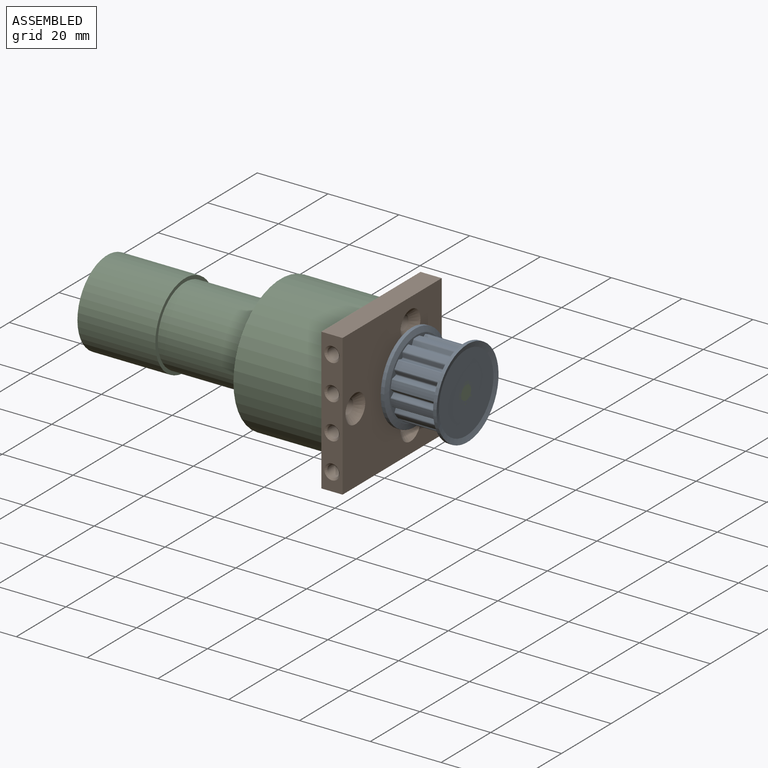
[diagram: assembled view]
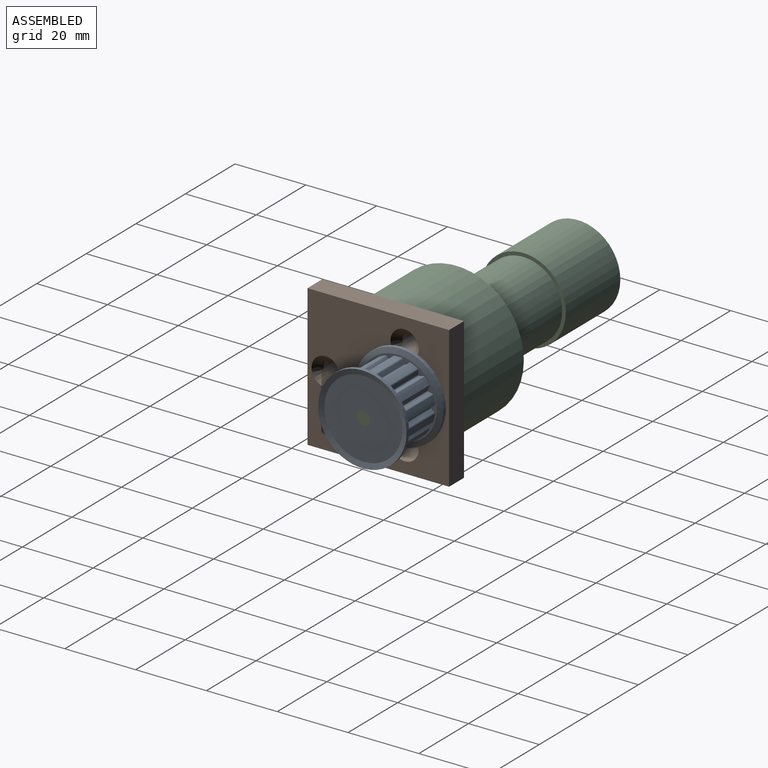
[diagram: assembled view, second angle]
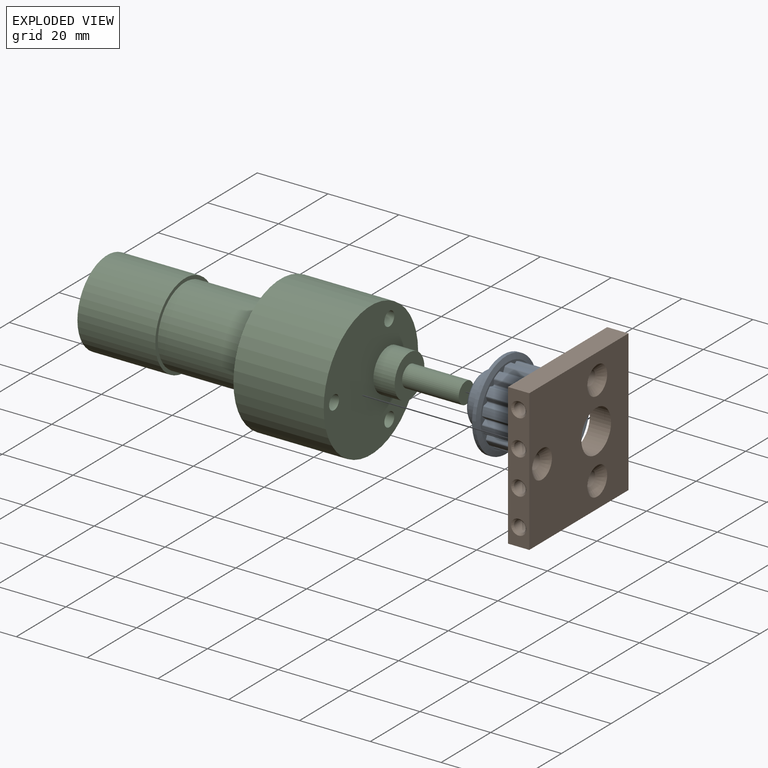
[diagram: exploded view]
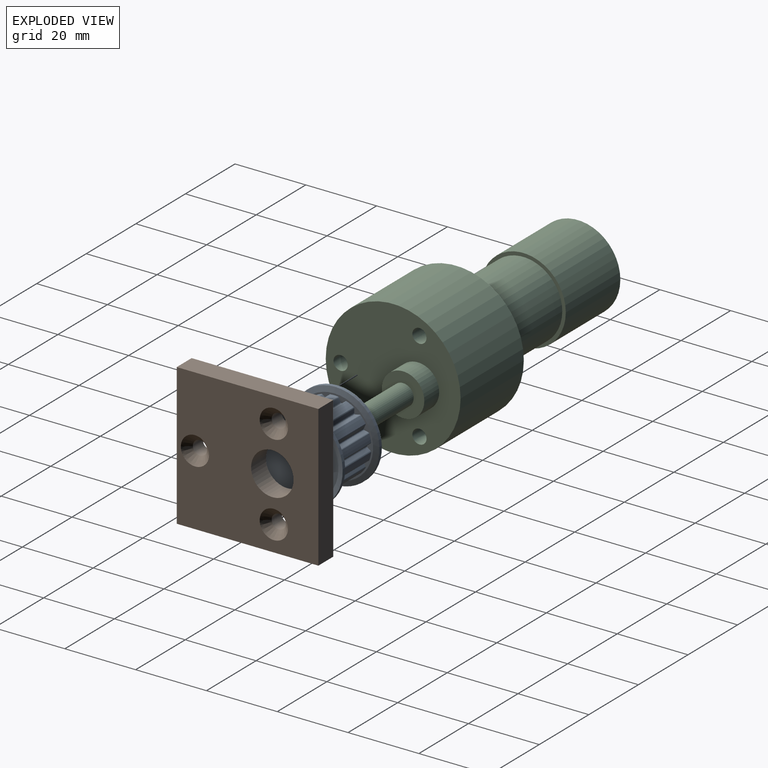
[diagram: exploded view, second angle]
ASSEMBLY  parts=3 mates=2
PART A: 121 faces, bbox 21.4x25x25 mm
  f0: cone r=11.75mm half-angle=75deg, axis (-1,0,0), area 114.6mm2, adj f1,f27
  f1: cylinder r=12.5mm len=25mm, axis (1,0,0), area 78.5mm2, adj f0,f2
  f2: cone r=11.75mm half-angle=75deg, axis (-1,0,0), area 114.6mm2, adj f1,f119
  f3: cone r=11.75mm half-angle=75deg, axis (1,0,0), area 114.6mm2, adj f4,f36
  f4: cylinder r=12.5mm len=25mm, axis (-1,0,0), area 78.5mm2, adj f3,f5
  f5: cone r=11.75mm half-angle=75deg, axis (1,0,0), area 114.6mm2, adj f4,f120
  f6: cylinder r=7mm len=14mm, axis (1,0,0), area 157.5mm2, adj f7,f15,f17
  f7: cone r=6.75mm half-angle=45deg, axis (-1,0,0), area 30mm2, adj f6,f18
  f8: cone r=0.5mm half-angle=30deg, axis (-1,0,0), area 6.3mm2, adj f9
  f9: cylinder r=1mm len=2mm, axis (1,0,0), area 9.7mm2, adj f8,f10
  f10: cone r=1.5mm half-angle=30deg, axis (-1,0,0), area 18.8mm2, adj f9,f119
  f11: cone r=0.5mm half-angle=30deg, axis (1,0,0), area 4.2mm2, adj f12,f16
  f12: cylinder r=1mm len=2mm, axis (-1,0,0), area 9.7mm2, adj f11,f13
  f13: cone r=1.5mm half-angle=30deg, axis (1,0,0), area 18.8mm2, adj f12,f18
  f14: cylinder r=9mm len=18mm, axis (1,0,0), area 0.1mm2, adj f15,f120
  f15: torus R=9mm, axis (1,0,0), area 148.9mm2, adj f6,f14,f17
  f16: plane 1.15x1.15mm, normal (1,0,0), area 1mm2, adj f11
  f17: plane 13.97x7.64mm, normal (1,0,0), area 0.2mm2, adj f6,f15
  f18: plane 13x13mm, normal (1,0,0), area 120.2mm2, adj f7,f13
  f19: plane 13x0.79mm, normal (0,0.77,0.63), area 13.2mm2, adj f20,f25,f27,f36
  f20: cylinder r=0.6mm len=13mm, axis (1,0,0), area 5.3mm2, adj f19,f21,f27,f36
  f21: cylinder r=10.53mm len=13mm, axis (1,0,0), area 29.5mm2, adj f20,f22,f27,f36
  f22: cylinder r=0.6mm len=13mm, axis (1,0,0), area 5.3mm2, adj f21,f23,f27,f36
  f23: plane 13x1.02mm, normal (0,-0.01,-1), area 13.2mm2, adj f22,f24,f27,f36
  f24: cylinder r=0.4mm len=13mm, axis (1,0,0), area 4.1mm2, adj f23,f27,f33,f36
  f25: cylinder r=0.4mm len=13mm, axis (1,0,0), area 4.1mm2, adj f19,f26,f27,f36
  f26: cylinder r=0.4mm len=13mm, axis (1,0,0), area 4.1mm2, adj f25,f27,f36,f118
  f27: plane 22x22mm, normal (1,0,0), area 53.6mm2, adj f0,f19,f20,f21,f22,f23,f24,f25
  f28: plane 13x0.91mm, normal (0,-0.45,-0.9), area 13.2mm2, adj f27,f29,f34,f36
  f29: cylinder r=0.6mm len=13mm, axis (1,0,0), area 5.3mm2, adj f27,f28,f30,f36
  f30: cylinder r=10.53mm len=13mm, axis (1,0,0), area 29.5mm2, adj f27,f29,f31,f36
  f31: cylinder r=0.6mm len=13mm, axis (1,0,0), area 5.3mm2, adj f27,f30,f32,f36
  f32: plane 13x0.99mm, normal (0,0.97,0.23), area 13.2mm2, adj f27,f31,f33,f36
  f33: cylinder r=0.4mm len=13mm, axis (1,0,0), area 4.1mm2, adj f24,f27,f32,f36
  f34: cylinder r=0.4mm len=13mm, axis (1,0,0), area 4.1mm2, adj f27,f28,f35,f36
  f35: cylinder r=0.4mm len=13mm, axis (1,0,0), area 4.1mm2, adj f27,f34,f36,f41
  f36: plane 22x22mm, normal (-1,0,0), area 53.6mm2, adj f3,f19,f20,f21,f22,f23,f24,f25
  f37: plane 13x0.8mm, normal (0,-0.79,-0.61), area 13.2mm2, adj f27,f36,f38,f42
  f38: cylinder r=0.6mm len=13mm, axis (1,0,0), area 5.3mm2, adj f27,f36,f37,f39
  f39: cylinder r=10.53mm len=13mm, axis (1,0,0), area 29.5mm2, adj f27,f36,f38,f40
  f40: cylinder r=0.6mm len=13mm, axis (1,0,0), area 5.3mm2, adj f27,f36,f39,f41
  f41: plane 13x1mm, normal (0,0.98,-0.21), area 13.2mm2, adj f27,f35,f36,f40
  f42: cylinder r=0.4mm len=13mm, axis (1,0,0), area 4.1mm2, adj f27,f36,f37,f43
  f43: cylinder r=0.4mm len=13mm, axis (1,0,0), area 4.1mm2, adj f27,f36,f42,f48
  f44: plane 13x1mm, normal (0,-0.98,-0.21), area 13.2mm2, adj f27,f36,f45,f49
  f45: cylinder r=0.6mm len=13mm, axis (1,0,0), area 5.3mm2, adj f27,f36,f44,f46
  f46: cylinder r=10.53mm len=13mm, axis (1,0,0), area 29.5mm2, adj f27,f36,f45,f47
  f47: cylinder r=0.6mm len=13mm, axis (1,0,0), area 5.3mm2, adj f27,f36,f46,f48
  f48: plane 13x0.8mm, normal (0,0.79,-0.61), area 13.2mm2, adj f27,f36,f43,f47
  f49: cylinder r=0.4mm len=13mm, axis (1,0,0), area 4.1mm2, adj f27,f36,f44,f50
  f50: cylinder r=0.4mm len=13mm, axis (1,0,0), area 4.1mm2, adj f27,f36,f49,f55
  f51: plane 13x0.99mm, normal (0,-0.97,0.23), area 13.2mm2, adj f27,f36,f52,f56
  f52: cylinder r=0.6mm len=13mm, axis (1,0,0), area 5.3mm2, adj f27,f36,f51,f53
  f53: cylinder r=10.53mm len=13mm, axis (1,0,0), area 29.5mm2, adj f27,f36,f52,f54
  f54: cylinder r=0.6mm len=13mm, axis (1,0,0), area 5.3mm2, adj f27,f36,f53,f55
  f55: plane 13x0.91mm, normal (0,0.45,-0.9), area 13.2mm2, adj f27,f36,f50,f54
  f56: cylinder r=0.4mm len=13mm, axis (1,0,0), area 4.1mm2, adj f27,f36,f51,f57
  f57: cylinder r=0.4mm len=13mm, axis (1,0,0), area 4.1mm2, adj f27,f36,f56,f62
  f58: plane 13x0.79mm, normal (0,-0.77,0.63), area 13.2mm2, adj f27,f36,f59,f63
  f59: cylinder r=0.6mm len=13mm, axis (1,0,0), area 5.3mm2, adj f27,f36,f58,f60
  f60: cylinder r=10.53mm len=13mm, axis (1,0,0), area 29.5mm2, adj f27,f36,f59,f61
  f61: cylinder r=0.6mm len=13mm, axis (1,0,0), area 5.3mm2, adj f27,f36,f60,f62
  f62: plane 13x1.02mm, normal (0,0.01,-1), area 13.2mm2, adj f27,f36,f57,f61
  f63: cylinder r=0.4mm len=13mm, axis (1,0,0), area 4.1mm2, adj f27,f36,f58,f64
  f64: cylinder r=0.4mm len=13mm, axis (1,0,0), area 4.1mm2, adj f27,f36,f63,f69
  f65: plane 13x0.92mm, normal (0,-0.42,0.91), area 13.2mm2, adj f27,f36,f66,f70
  f66: cylinder r=0.6mm len=13mm, axis (1,0,0), area 5.3mm2, adj f27,f36,f65,f67
  f67: cylinder r=10.53mm len=13mm, axis (1,0,0), area 29.5mm2, adj f27,f36,f66,f68
  f68: cylinder r=0.6mm len=13mm, axis (1,0,0), area 5.3mm2, adj f27,f36,f67,f69
  f69: plane 13x0.92mm, normal (0,-0.42,-0.91), area 13.2mm2, adj f27,f36,f64,f68
  f70: cylinder r=0.4mm len=13mm, axis (1,0,0), area 4.1mm2, adj f27,f36,f65,f71
  f71: cylinder r=0.4mm len=13mm, axis (1,0,0), area 4.1mm2, adj f27,f36,f70,f76
  f72: plane 13x1.02mm, normal (0,0.01,1), area 13.2mm2, adj f27,f36,f73,f77
  f73: cylinder r=0.6mm len=13mm, axis (1,0,0), area 5.3mm2, adj f27,f36,f72,f74
  f74: cylinder r=10.53mm len=13mm, axis (1,0,0), area 29.5mm2, adj f27,f36,f73,f75
  f75: cylinder r=0.6mm len=13mm, axis (1,0,0), area 5.3mm2, adj f27,f36,f74,f76
  f76: plane 13x0.79mm, normal (0,-0.77,-0.63), area 13.2mm2, adj f27,f36,f71,f75
  f77: cylinder r=0.4mm len=13mm, axis (1,0,0), area 4.1mm2, adj f27,f36,f72,f78
  f78: cylinder r=0.4mm len=13mm, axis (1,0,0), area 4.1mm2, adj f27,f36,f77,f83
  f79: plane 13x0.91mm, normal (0,0.45,0.9), area 13.2mm2, adj f27,f36,f80,f84
  f80: cylinder r=0.6mm len=13mm, axis (1,0,0), area 5.3mm2, adj f27,f36,f79,f81
  f81: cylinder r=10.53mm len=13mm, axis (1,0,0), area 29.5mm2, adj f27,f36,f80,f82
  f82: cylinder r=0.6mm len=13mm, axis (1,0,0), area 5.3mm2, adj f27,f36,f81,f83
  f83: plane 13x0.99mm, normal (0,-0.97,-0.23), area 13.2mm2, adj f27,f36,f78,f82
  f84: cylinder r=0.4mm len=13mm, axis (1,0,0), area 4.1mm2, adj f27,f36,f79,f85
  f85: cylinder r=0.4mm len=13mm, axis (1,0,0), area 4.1mm2, adj f27,f36,f84,f90
  f86: plane 13x0.8mm, normal (0,0.79,0.61), area 13.2mm2, adj f27,f36,f87,f91
  f87: cylinder r=0.6mm len=13mm, axis (1,0,0), area 5.3mm2, adj f27,f36,f86,f88
  f88: cylinder r=10.53mm len=13mm, axis (1,0,0), area 29.5mm2, adj f27,f36,f87,f89
  f89: cylinder r=0.6mm len=13mm, axis (1,0,0), area 5.3mm2, adj f27,f36,f88,f90
  f90: plane 13x1mm, normal (0,-0.98,0.21), area 13.2mm2, adj f27,f36,f85,f89
  f91: cylinder r=0.4mm len=13mm, axis (1,0,0), area 4.1mm2, adj f27,f36,f86,f92
  f92: cylinder r=0.4mm len=13mm, axis (1,0,0), area 4.1mm2, adj f27,f36,f91,f97
  f93: plane 13x1mm, normal (0,0.98,0.21), area 13.2mm2, adj f27,f36,f94,f98
  f94: cylinder r=0.6mm len=13mm, axis (1,0,0), area 5.3mm2, adj f27,f36,f93,f95
  f95: cylinder r=10.53mm len=13mm, axis (1,0,0), area 29.5mm2, adj f27,f36,f94,f96
  f96: cylinder r=0.6mm len=13mm, axis (1,0,0), area 5.3mm2, adj f27,f36,f95,f97
  f97: plane 13x0.8mm, normal (0,-0.79,0.61), area 13.2mm2, adj f27,f36,f92,f96
  f98: cylinder r=0.4mm len=13mm, axis (1,0,0), area 4.1mm2, adj f27,f36,f93,f99
  f99: cylinder r=0.4mm len=13mm, axis (1,0,0), area 4.1mm2, adj f27,f36,f98,f104
  f100: plane 13x0.99mm, normal (0,0.97,-0.23), area 13.2mm2, adj f27,f36,f101,f105
  f101: cylinder r=0.6mm len=13mm, axis (1,0,0), area 5.3mm2, adj f27,f36,f100,f102
  f102: cylinder r=10.53mm len=13mm, axis (1,0,0), area 29.5mm2, adj f27,f36,f101,f103
  f103: cylinder r=0.6mm len=13mm, axis (1,0,0), area 5.3mm2, adj f27,f36,f102,f104
  f104: plane 13x0.91mm, normal (0,-0.45,0.9), area 13.2mm2, adj f27,f36,f99,f103
  f105: cylinder r=0.4mm len=13mm, axis (1,0,0), area 4.1mm2, adj f27,f36,f100,f106
  f106: cylinder r=0.4mm len=13mm, axis (1,0,0), area 4.1mm2, adj f27,f36,f105,f110
  f107: cylinder r=0.4mm len=13mm, axis (1,0,0), area 4.1mm2, adj f27,f36,f112,f115
  f108: cylinder r=10.53mm len=13mm, axis (1,0,0), area 29.5mm2, adj f27,f36,f109,f111
  f109: cylinder r=0.6mm len=13mm, axis (1,0,0), area 5.3mm2, adj f27,f36,f108,f112
  f110: plane 13x1.02mm, normal (0,-0.01,1), area 13.2mm2, adj f27,f36,f106,f111
  f111: cylinder r=0.6mm len=13mm, axis (1,0,0), area 5.3mm2, adj f27,f36,f108,f110
  f112: plane 13x0.79mm, normal (0,0.77,-0.63), area 13.2mm2, adj f27,f36,f107,f109
  f113: cylinder r=10.53mm len=13mm, axis (1,0,0), area 29.5mm2, adj f27,f36,f114,f117
  f114: cylinder r=0.6mm len=13mm, axis (1,0,0), area 5.3mm2, adj f27,f36,f113,f118
  f115: cylinder r=0.4mm len=13mm, axis (1,0,0), area 4.1mm2, adj f27,f36,f107,f116
  f116: plane 13x0.92mm, normal (0,0.42,0.91), area 13.2mm2, adj f27,f36,f115,f117
  f117: cylinder r=0.6mm len=13mm, axis (1,0,0), area 5.3mm2, adj f27,f36,f113,f116
  f118: plane 13x0.92mm, normal (0,0.42,-0.91), area 13.2mm2, adj f26,f27,f36,f114
  f119: plane 22x22mm, normal (-1,0,0), area 367.6mm2, adj f2,f10
  f120: plane 22x22mm, normal (1,0,0), area 125.7mm2, adj f5,f14
PART B: 25 faces, bbox 40x6x40 mm
  f0: plane 40x6mm, normal (0,0,1), area 240mm2, adj f1,f7,f8,f9
  f1: plane 40x6mm, normal (-1,0,0), area 240mm2, adj f0,f2,f8,f9
  f2: plane 40x6mm, normal (0,0,-1), area 181.9mm2, adj f1,f7,f8,f9,f21,f22,f23,f24
  f3: cylinder r=6mm len=12mm, axis (0,1,0), area 226.2mm2, adj f8,f9
  f4: cylinder r=2mm len=4mm, axis (0,1,0), area 50.3mm2, adj f9,f10
  f5: cylinder r=2mm len=4mm, axis (0,1,0), area 50.3mm2, adj f9,f11
  f6: cylinder r=2mm len=4mm, axis (0,1,0), area 50.3mm2, adj f9,f12
  f7: plane 40x6mm, normal (1,0,0), area 240mm2, adj f0,f2,f8,f9
  f8: plane 40x40mm, normal (0,-1,0), area 1336.1mm2, adj f0,f1,f2,f3,f7,f10,f11,f12
  f9: plane 40x40mm, normal (0,1,0), area 1449.2mm2, adj f0,f1,f2,f3,f4,f5,f6,f7
  f10: cone r=2mm half-angle=45deg, axis (0,-1,0), area 53.3mm2, adj f4,f8
  f11: cone r=2mm half-angle=45deg, axis (0,-1,0), area 53.3mm2, adj f5,f8
  f12: cone r=2mm half-angle=45deg, axis (0,-1,0), area 53.3mm2, adj f6,f8
  f13: cylinder r=1.65mm len=9.5mm, axis (0,0,-1), area 98.5mm2, adj f14,f21
  f14: plane 3.3x3.3mm, normal (0,0,-1), area 8.6mm2, adj f13
  f15: cylinder r=1.65mm len=9.5mm, axis (0,0,-1), area 98.5mm2, adj f16,f23
  f16: plane 3.3x3.3mm, normal (0,0,-1), area 8.6mm2, adj f15
  f17: cylinder r=1.65mm len=9.5mm, axis (0,0,-1), area 98.5mm2, adj f18,f22
  f18: plane 3.3x3.3mm, normal (0,0,-1), area 8.6mm2, adj f17
  f19: cylinder r=1.65mm len=9.5mm, axis (0,0,-1), area 98.5mm2, adj f20,f24
  f20: plane 3.3x3.3mm, normal (0,0,-1), area 8.6mm2, adj f19
  f21: cone r=1.65mm half-angle=45deg, axis (0,0,-1), area 8.4mm2, adj f2,f13
  f22: cone r=1.65mm half-angle=45deg, axis (0,0,-1), area 8.4mm2, adj f2,f17
  f23: cone r=1.65mm half-angle=45deg, axis (0,0,-1), area 8.4mm2, adj f2,f15
  f24: cone r=1.65mm half-angle=45deg, axis (0,0,-1), area 8.4mm2, adj f2,f19
PART C: 17 faces, bbox 38.1x96.5x38.1 mm
  f0: cylinder r=6mm len=12mm, axis (0,1,0), area 226.2mm2, adj f1,f6
  f1: plane 12x12mm, normal (0,-1,0), area 84.8mm2, adj f0,f2
  f2: cylinder r=3mm len=16mm, axis (0,1,0), area 301.6mm2, adj f1,f3
  f3: plane 6x6mm, normal (0,-1,0), area 28.3mm2, adj f2
  f4: cylinder r=19.05mm len=38.1mm, axis (0,-1,0), area 3052.2mm2, adj f5,f6
  f5: plane 38.1x38.1mm, normal (0,1,0), area 760mm2, adj f4,f13
  f6: plane 38.1x38.1mm, normal (0,-1,0), area 989.3mm2, adj f0,f4,f7,f9,f11
  f7: cylinder r=2mm len=10mm, axis (0,-1,0), area 125.7mm2, adj f6,f8
  f8: plane 4x4mm, normal (0,-1,0), area 12.6mm2, adj f7
  f9: cylinder r=2mm len=10mm, axis (0,-1,0), area 125.7mm2, adj f6,f10
  f10: plane 4x4mm, normal (0,-1,0), area 12.6mm2, adj f9
  f11: cylinder r=2mm len=10mm, axis (0,-1,0), area 125.7mm2, adj f6,f12
  f12: plane 4x4mm, normal (0,-1,0), area 12.6mm2, adj f11
  f13: cylinder r=11mm len=27mm, axis (0,-1,0), area 1866.1mm2, adj f5,f14
  f14: plane 24x24mm, normal (0,-1,0), area 72.3mm2, adj f13,f16
  f15: plane 24x24mm, normal (0,1,0), area 452.4mm2, adj f16
  f16: cylinder r=12mm len=24mm, axis (0,-1,0), area 1658.8mm2, adj f14,f15
PLACE A rot(axis=(0,0.71,0.71),180deg) t=(55.32,-48.96,33.67)mm
PLACE B rot(axis=(-0.58,0.58,0.58),120deg) t=(33.32,-61.13,-41.34)mm
PLACE C rot(axis=(-0.58,0.58,0.58),120deg) t=(33.32,6.11,-41.34)mm
MATE fastened A.f0 <-> C.f0  axis (1,0,0) through (55.32,-48.96,33.67)mm
MATE fastened C.f9 <-> B.f4  axis (1,0,0) through (33.32,-70.81,33.67)mm
